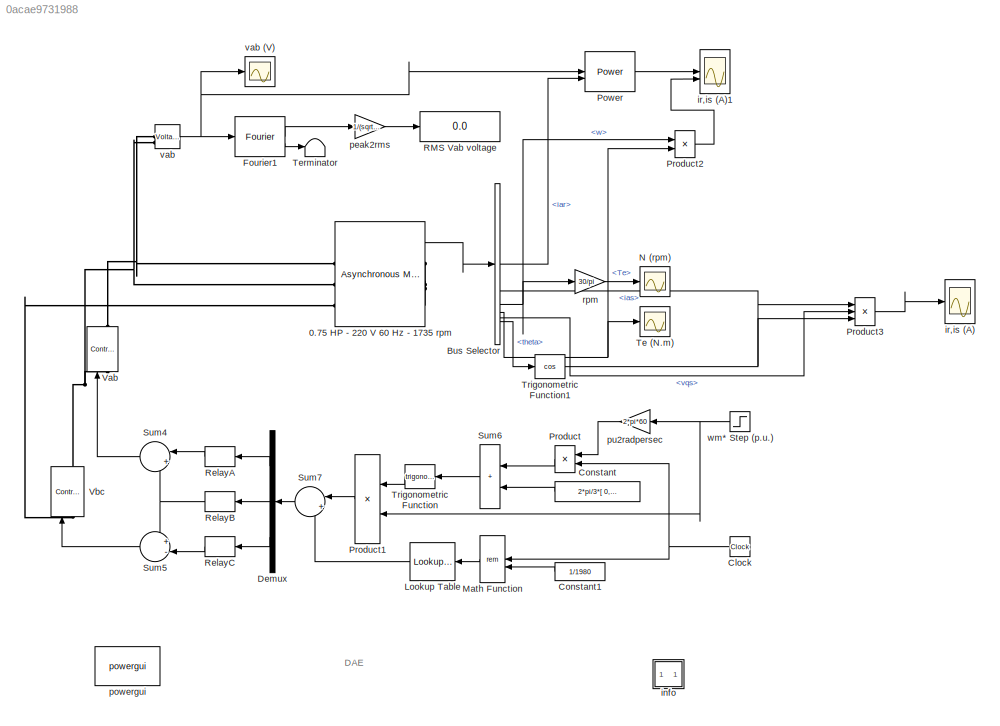
MODEL slx_0acae9731988
KIND model
CONFIG AbsTol = auto
CONFIG EnableMultiTasking = off
CONFIG FixedStep = auto
CONFIG MaxStep = 10e-6
CONFIG MinStep = auto
CONFIG RelTol = 1e-4
CONFIG SampleTimeConstraint = Unconstrained
CONFIG SolverName = ode23tb
CONFIG StartTime = 0.0
CONFIG StopTime = 10
BLOCK [Reference] 0.75 HP - 220 V 60 Hz - 1735 rpm  REF=spsAsynchronousMachineSIUnitsLib/Asynchronous Machine
SI Units
  AttributesFormatString = \n
  SourceBlock = spsAsynchronousMachineSIUnitsLib/Asynchronous Machine\nSI Units
  SourceType = Asynchronous Machine
BLOCK [BusSelector] Bus Selector
  OutputSignals = iar,ias,w,Te,vqs,theta
BLOCK [Clock] Clock
BLOCK [Constant] Constant
  Value = 2*pi/3*[ 0,-1,1 ]
BLOCK [Constant] Constant1
  Value = 1/1980
BLOCK [Demux] Demux
  DisplayOption = none
  Outputs = 3
BLOCK [Reference] Fourier1  REF=spsFourierLib/Fourier
  SourceBlock = spsFourierLib/Fourier
  SourceType = Fourier
BLOCK [Lookup_n-D] Lookup Table
  BreakpointsForDimension1 = [0 0.25  0.75  1] / 1980
  BreakpointsForDimension2 = [0 571.55 685.8 800.15 914.4 1028.8 1143.1 1257.4 1371.7 1486 1600.3 1714.6 1828.9 1943.2 2057.5 2171.8 2286.1 2400.5 2514.7 2629.1 2743.3 2857.7 2971.9 3086.3 3200.5 3314.9 3429.2]
  InputPortMap = u0
  InternalRulePriority = Speed
  NumberOfTableDimensions = 1
  RndMeth = Simplest
  Table = [0  1  -1  0]
BLOCK [Math] Math Function
  Operator = rem
  SignedPower = on
BLOCK [Scope] N (rpm)
  ActiveDisplayYMaximum = 1863.93216
  ActiveDisplayYMinimum = 1730.34512
  DataLoggingDecimateData = on
  DataLoggingDecimation = 1
  DataLoggingSaveFormat = Array
  Floating = off
  GraphicalSettings = {"Style":{"BackgroundColor":[0.12941176470588237,0.12941176470588237,0.12941176470588237],"AxesColor":[0.07058823529411765,0.07058823529411765,0.07058823529411765],"LabelsColor":[0.8509803921568627,0.8509803921568627,0.8509803921568627],"PreserveColors":false,"Visible":[true],"LineStyle":["-"],"LineWidth":[1.5],"BarWidth":[0.9],"LineColor":["auto"],"LineFaceAlpha":[1],"LineEdgeAlpha":[1],"Marker":...<+1961ch>
  MultipleDisplayCache = [{"MaxYLimMag":1863.93216,"MaxYLimReal":1863.93216,"MinYLimMag":1730.34512,"MinYLimReal":1730.34512,"PlotAsMagnitudePhase":false,"ShowGrid":true,"ShowLegend":false,"Title":"%<SignalLabel>","YLabel":""}]
  NameLocation = top
  NumInputPorts = 1
  ScopeFrameLocation = window
  WasSavedAsWebScope = on
  WindowPosition = [488.000000,222.000000,560.000000,420.000000,]
BLOCK [Reference] Power  REF=spsPowerLib/Power
  LibrarySourceBlock = sps_lib/Sensors and Measurements/Power
  SourceBlock = spsPowerLib/Power
  SourceType = Power
BLOCK [Product] Product
  InputSameDT = on
  NameLocation = top
  OutDataTypeStr = Inherit: Same as first input
  SaturateOnIntegerOverflow = on
BLOCK [Product] Product1
  InputSameDT = on
  NameLocation = top
  OutDataTypeStr = Inherit: Same as first input
  SaturateOnIntegerOverflow = on
BLOCK [Product] Product2
  InputSameDT = on
  NameLocation = top
  OutDataTypeStr = Inherit: Same as first input
  SaturateOnIntegerOverflow = on
BLOCK [Product] Product3
  InputSameDT = on
  Inputs = 3
  NameLocation = top
  OutDataTypeStr = Inherit: Same as first input
  SaturateOnIntegerOverflow = on
BLOCK [Display] RMS Vab voltage
  Decimation = 100
BLOCK [Relay] RelayA
  NameLocation = top
  OffOutputValue = -220*sqrt(2/3)
  OffSwitchValue = 0
  OnOutputValue = 220*sqrt(2/3)
  OnSwitchValue = 0
BLOCK [Relay] RelayB
  NameLocation = top
  OffOutputValue = -220*sqrt(2/3)
  OffSwitchValue = 0
  OnOutputValue = 220*sqrt(2/3)
  OnSwitchValue = 0
BLOCK [Relay] RelayC
  NameLocation = top
  OffOutputValue = -220*sqrt(2/3)
  OffSwitchValue = 0
  OnOutputValue = 220*sqrt(2/3)
  OnSwitchValue = 0
BLOCK [Sum] Sum4
  InputSameDT = on
  Inputs = |+-
  NameLocation = top
  OutDataTypeStr = Inherit: Same as first input
  SaturateOnIntegerOverflow = on
BLOCK [Sum] Sum5
  InputSameDT = on
  Inputs = +-|
  NameLocation = top
  OutDataTypeStr = Inherit: Same as first input
  SaturateOnIntegerOverflow = on
BLOCK [Sum] Sum6
  IconShape = rectangular
  InputSameDT = on
  OutDataTypeStr = Inherit: Same as first input
  SaturateOnIntegerOverflow = on
BLOCK [Sum] Sum7
  InputSameDT = on
  Inputs = |+-
  NameLocation = top
  OutDataTypeStr = Inherit: Same as first input
  SaturateOnIntegerOverflow = on
BLOCK [Scope] Te (N.m)
  ActiveDisplayYMaximum = 10.06498
  ActiveDisplayYMinimum = -8.50353
  DataLoggingDecimateData = on
  DataLoggingDecimation = 1
  DataLoggingSaveFormat = Array
  Floating = off
  GraphicalSettings = {"Style":{"BackgroundColor":[0.12941176470588237,0.12941176470588237,0.12941176470588237],"AxesColor":[0.07058823529411765,0.07058823529411765,0.07058823529411765],"LabelsColor":[0.8509803921568627,0.8509803921568627,0.8509803921568627],"PreserveColors":false,"Visible":[true],"LineStyle":["-"],"LineWidth":[1.5],"BarWidth":[0.9],"LineColor":["auto"],"LineFaceAlpha":[1],"LineEdgeAlpha":[1],"Marker":...<+1933ch>
  MultipleDisplayCache = [{"MaxYLimMag":10.06498,"MaxYLimReal":10.06498,"MinYLimMag":0,"MinYLimReal":-8.50353,"PlotAsMagnitudePhase":false,"ShowGrid":true,"ShowLegend":false,"Title":"%<SignalLabel>","YLabel":""}]
  NumInputPorts = 1
  ScopeFrameLocation = window
  WasSavedAsWebScope = on
  WindowPosition = [488.000000,222.000000,560.000000,420.000000,]
BLOCK [Terminator] Terminator
BLOCK [Trigonometry] Trigonometric Function
  NameLocation = top
BLOCK [Trigonometry] Trigonometric Function1
  NameLocation = top
  Operator = cos
BLOCK [Reference] Vab  REF=spsControlledVoltageSourceLib/Controlled Voltage Source
  AttributesFormatString = \n
  Description = source block
  NameLocation = right
  SourceBlock = spsControlledVoltageSourceLib/Controlled Voltage Source
  SourceType = Controlled Voltage Source
BLOCK [Reference] Vbc  REF=spsControlledVoltageSourceLib/Controlled Voltage Source
  AttributesFormatString = \n
  Description = source block
  NameLocation = right
  SourceBlock = spsControlledVoltageSourceLib/Controlled Voltage Source
  SourceType = Controlled Voltage Source
BLOCK [SubSystem] info
  OpenFcn = showExample("simscapeelectricalsps/ThreePhaseASMExample")
BLOCK [Scope] ir,is (A)
  ActiveDisplayYMaximum = 1782.285663561875
  ActiveDisplayYMinimum = -1193.6243343697502
  ContainerLayout = {"WindowBounds":[128,96,1280,768]}
  DataLoggingDecimateData = on
  DataLoggingDecimation = 1
  DataLoggingSaveFormat = Array
  Floating = off
  GraphicalSettings = {"Style":{"BackgroundColor":[0.12941176470588237,0.12941176470588237,0.12941176470588237],"AxesColor":[0.07058823529411765,0.07058823529411765,0.07058823529411765],"LabelsColor":[0.8509803921568627,0.8509803921568627,0.8509803921568627],"PreserveColors":false,"Visible":[true,true],"LineStyle":["-","-"],"LineWidth":[1.5,1.5],"BarWidth":[0.9,0.9],"LineColor":["auto","auto"],"LineFaceAlpha":[1,1],"Li...<+2298ch>
  LayoutDimensionsString = [1,1]
  MultipleDisplayCache = [{"MaxYLimMag":2.4305,"MaxYLimReal":1782.285663561875,"MinYLimMag":0,"MinYLimReal":-1193.6243343697502,"PlotAsMagnitudePhase":false,"ShowGrid":true,"ShowLegend":false,"Title":"%<SignalLabel>","YLabel":""}]
  NameLocation = top
  NumInputPorts = 2
  ScopeFrameLocation = container
  TimeSpan = 1
  Visible = on
  WasSavedAsWebScope = on
  WindowPosition = [128.000000,0.000000,1280.000000,768.000000,]
BLOCK [Scope] ir,is (A)1
  ActiveDisplayYMaximum = 13510.47928
  ActiveDisplayYMinimum = -13058.8475
  DataLoggingDecimateData = on
  DataLoggingDecimation = 1
  DataLoggingSaveFormat = Array
  DataLoggingVariableName = ScopeData1
  Floating = off
  GraphicalSettings = {"Style":{"BackgroundColor":[0.12941176470588237,0.12941176470588237,0.12941176470588237],"AxesColor":[0.07058823529411765,0.07058823529411765,0.07058823529411765],"LabelsColor":[0.8509803921568627,0.8509803921568627,0.8509803921568627],"PreserveColors":false,"Visible":[true,true],"LineStyle":["-","-"],"LineWidth":[1.5,1.5],"BarWidth":[0.9,0.9],"LineColor":["auto","auto"],"LineFaceAlpha":[1,1],"Li...<+2351ch>
  LayoutDimensionsString = [2 1]
  MultipleDisplayCache = [{"MaxYLimMag":13510.47928,"MaxYLimReal":13510.47928,"MinYLimMag":0,"MinYLimReal":-13058.8475,"PlotAsMagnitudePhase":false,"ShowGrid":true,"ShowLegend":false,"Title":"%<SignalLabel>","YLabel":""},{"MaxYLimMag":10,"MaxYLimReal":6900.97562,"MinYLimMag":0,"MinYLimReal":-1284.58997,"PlotAsMagnitudePhase":false,"ShowGrid":true,"ShowLegend":false,"Title":"%<SignalLabel>","YLabel":""}]
  NameLocation = top
  NumInputPorts = 2
  ScopeFrameLocation = window
  TimeSpan = 1
  WasSavedAsWebScope = on
  WindowPosition = [488.000000,222.000000,560.000000,420.000000,]
BLOCK [Gain] peak2rms
  Gain = 1/(sqrt(2))
  NameLocation = top
  OutDataTypeStr = Inherit: Same as input
  ParamDataTypeStr = Inherit: Same as input
  SaturateOnIntegerOverflow = on
BLOCK [Reference] powergui  REF=spspowerguiLib/powergui
  SourceBlock = spspowerguiLib/powergui
  SourceType = PSB option menu block
BLOCK [Gain] pu2radpersec
  Gain = 2*pi*60
  NameLocation = top
  OutDataTypeStr = Inherit: Same as input
  ParamDataTypeStr = Inherit: Same as input
  SaturateOnIntegerOverflow = on
BLOCK [Gain] rpm
  Gain = 30/pi
  OutDataTypeStr = Inherit: Same as input
  ParamDataTypeStr = Inherit: Same as input
  SaturateOnIntegerOverflow = on
BLOCK [Reference] vab  REF=spsVoltageMeasurementLib/Voltage Measurement
  AttributesFormatString = \n
  NameLocation = top
  SourceBlock = spsVoltageMeasurementLib/Voltage Measurement
  SourceType = Voltage Measurement
  Tag = PoWeRsYsTeMmEaSuReMeNt
BLOCK [Scope] vab (V)
  ActiveDisplayYMaximum = 369.08687
  ActiveDisplayYMinimum = -382.67931
  DataLoggingDecimateData = on
  DataLoggingDecimation = 1
  DataLoggingSaveFormat = Array
  Floating = off
  GraphicalSettings = {"GraphicalSettings":{"LegacySettings":true,"Style":{"AxesScalingProperties":{"ScaleAxesLimitsAtStop":false},"Style":{"AxesColor":"[0 0 0]","ChannelNames":[""],"ColorOrder":"[1 0.909803921568627 0.392156862745098;0.149019607843137 0.549019607843137 0.866666666666667;0.96078431372549 0.466666666666667 0.16078431372549;0.286274509803922 0.858823529411765 0.250980392156863;0.752941176470588 0.3607843...<+488ch>
  MultipleDisplayCache = [{"MaxYLimMag":382.67931,"MaxYLimReal":369.08687,"MinYLimMag":0,"MinYLimReal":-382.67931,"PlotAsMagnitudePhase":false,"ShowGrid":true,"ShowLegend":false,"Title":"%<SignalLabel>","YLabel":""}]
  NameLocation = top
  NumInputPorts = 1
  WasSavedAsWebScope = on
BLOCK [Step] wm* Step (p.u.)
  SampleTime = 0
  Time = 0
ANNOTATION (root): DAE
LINE 0.75 HP - 220 V 60 Hz - 1735 rpm:1 -> Bus Selector:1
LINE Bus Selector:1 -> Power:2
LINE Bus Selector:2 -> Product3:1
NET Bus Selector:3 -> Product2:1, rpm:1
NET Bus Selector:4 -> Product2:2, Te (N.m):1
LINE Bus Selector:5 -> Product3:2
LINE Bus Selector:6 -> Trigonometric Function1:1
NET Clock:1 -> Math Function:1, Product:2
LINE Constant1:1 -> Math Function:2
LINE Constant:1 -> Sum6:2
LINE Demux:1 -> RelayA:1
LINE Demux:2 -> RelayB:1
LINE Demux:3 -> RelayC:1
LINE Fourier1:1 -> peak2rms:1
LINE Fourier1:2 -> Terminator:1
LINE Lookup Table:1 -> Sum7:2
LINE Math Function:1 -> Lookup Table:1
LINE Power:1 -> ir,is (A)1:1
LINE Product1:1 -> Sum7:1
LINE Product2:1 -> ir,is (A)1:2
LINE Product3:1 -> ir,is (A):1
LINE Product:1 -> Sum6:1
LINE RelayA:1 -> Sum4:1
NET RelayB:1 -> Sum4:2, Sum5:1
LINE RelayC:1 -> Sum5:2
LINE Sum4:1 -> Vab:1
LINE Sum5:1 -> Vbc:1
LINE Sum6:1 -> Trigonometric Function:1
LINE Sum7:1 -> Demux:1
LINE Trigonometric Function1:1 -> Product3:3
LINE Trigonometric Function:1 -> Product1:1
LINE peak2rms:1 -> RMS Vab voltage:1
LINE pu2radpersec:1 -> Product:1
LINE rpm:1 -> N (rpm):1
NET vab:1 -> Fourier1:1, Power:1, vab (V):1
NET wm* Step (p.u.):1 -> Product1:2, pu2radpersec:1
PNET net1: 0.75 HP - 220 V 60 Hz - 1735 rpm:LConn1 -- Vab:RConn1 -- vab:LConn1
PNET net2: 0.75 HP - 220 V 60 Hz - 1735 rpm:LConn2 -- Vab:LConn1 -- Vbc:RConn1 -- vab:LConn2
PLINE 0.75 HP - 220 V 60 Hz - 1735 rpm:LConn3 -- Vbc:LConn1
PNET net3: 0.75 HP - 220 V 60 Hz - 1735 rpm:RConn1 -- 0.75 HP - 220 V 60 Hz - 1735 rpm:RConn2 -- 0.75 HP - 220 V 60 Hz - 1735 rpm:RConn3
note: NET lines group one-source signal fan-out (src -> all destinations, sorted); 1:1 wires keep LINE; PNET lines group multi-terminal physical nets as a canonical sorted terminal list (undirected conserving connections); 2-terminal nets keep the pairwise PLINE form
